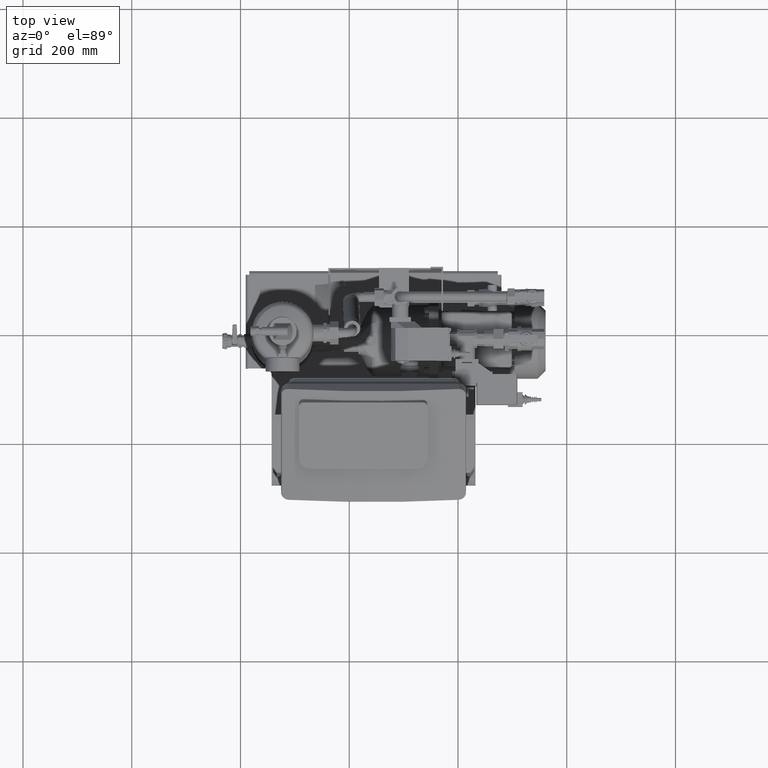
[diagram: clean part render]
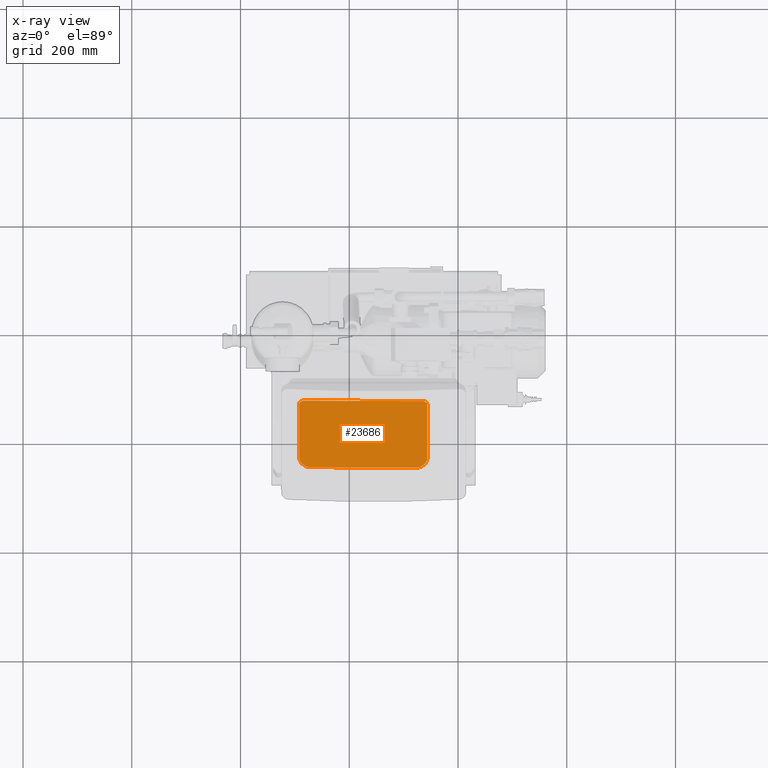
[diagram: x-ray — body ghosted, one internal face saturated and labeled with its STEP entity id]
A machine part, top view, then the same camera in x-ray: the body is ghosted and one INTERNAL B-rep face — a face not visible from any outside direction — is saturated and labeled: STEP entity #23686.
In plain terms, the highlighted planar face has unit normal (0.0066, 0.5, -0.866).
Its self-contained STEP definition (entity closure, byte-faithful):
#23611=CARTESIAN_POINT('',(44.532698356409199,-218.84142560913361,620.9296278255465));
#23612=DIRECTION('',(0.006563574690845,0.49998922975582,-0.866006749174312));
#23613=DIRECTION('',(0.999978459511643,-0.003281787345423,0.005684222421909));
#23614=AXIS2_PLACEMENT_3D('',#23611,#23612,#23613);
#23615=PLANE('',#23614);
#23616=CARTESIAN_POINT('',(122.24335258335437,-253.73747709574346,601.37136198389396));
#23617=VERTEX_POINT('',#23616);
#23618=CARTESIAN_POINT('',(143.74335258335435,-235.18849086220033,612.24357539850166));
#23619=VERTEX_POINT('',#23618);
#23620=CARTESIAN_POINT('',(122.24335258335437,-235.11793091437804,612.12136198389396));
#23621=DIRECTION('',(-0.006563574690845,-0.49998922975582,0.866006749174312));
#23622=DIRECTION('',(0.999978459511643,-0.003281787345423,0.005684222421908));
#23623=AXIS2_PLACEMENT_3D('',#23620,#23621,#23622);
#23624=ELLIPSE('',#23623,21.500463130475747,21.500000000000007);
#23625=EDGE_CURVE('',#23617,#23619,#23624,.T.);
#23626=ORIENTED_EDGE('',*,*,#23625,.T.);
#23627=CARTESIAN_POINT('',(143.74335258335435,-139.92569644591188,667.24357539850155));
#23628=VERTEX_POINT('',#23627);
#23629=CARTESIAN_POINT('',(143.74335258335435,-235.1884908622003,612.24357539850166));
#23630=DIRECTION('',(2.583792E-016,0.866025403784439,0.499999999999999));
#23631=VECTOR('',#23630,110.00000000000006);
#23632=LINE('',#23629,#23631);
#23633=EDGE_CURVE('',#23619,#23628,#23632,.T.);
#23634=ORIENTED_EDGE('',*,*,#23633,.T.);
#23635=CARTESIAN_POINT('',(135.24335258335435,-132.53658472041914,671.44525846714498));
#23636=VERTEX_POINT('',#23635);
#23637=CARTESIAN_POINT('',(135.24335258335435,-139.89780065258688,667.19525846714498));
#23638=DIRECTION('',(-0.006563574690845,-0.49998922975582,0.866006749174312));
#23639=DIRECTION('',(0.999978459511643,-0.003281787345426,0.005684222421907));
#23640=AXIS2_PLACEMENT_3D('',#23637,#23638,#23639);
#23641=ELLIPSE('',#23640,8.500183098095031,8.49999999999997);
#23642=EDGE_CURVE('',#23628,#23636,#23641,.T.);
#23643=ORIENTED_EDGE('',*,*,#23642,.T.);
#23644=CARTESIAN_POINT('',(-83.756647416645635,-131.81785781004285,670.20038694160644));
#23645=VERTEX_POINT('',#23644);
#23646=CARTESIAN_POINT('',(135.24335258335435,-132.53658472041911,671.44525846714498));
#23647=DIRECTION('',(-0.999978459511643,0.003281787345423,-0.005684222421908));
#23648=VECTOR('',#23647,219.00471746856687);
#23649=LINE('',#23646,#23648);
#23650=EDGE_CURVE('',#23636,#23645,#23649,.T.);
#23651=ORIENTED_EDGE('',*,*,#23650,.T.);
#23652=CARTESIAN_POINT('',(-92.256647416645578,-139.15117794888548,665.90207001024999));
#23653=VERTEX_POINT('',#23652);
#23654=CARTESIAN_POINT('',(-83.756647416645635,-139.17907374221059,665.95038694160644));
#23655=DIRECTION('',(-0.006563574690845,-0.49998922975582,0.866006749174312));
#23656=DIRECTION('',(-0.999978459511643,0.003281787345423,-0.005684222421908));
#23657=AXIS2_PLACEMENT_3D('',#23654,#23655,#23656);
#23658=ELLIPSE('',#23657,8.500183098095077,8.500000000000016);
#23659=EDGE_CURVE('',#23645,#23653,#23658,.T.);
#23660=ORIENTED_EDGE('',*,*,#23659,.T.);
#23661=CARTESIAN_POINT('',(-92.256647416645748,-234.41397236517381,610.9020700102501));
#23662=VERTEX_POINT('',#23661);
#23663=CARTESIAN_POINT('',(-92.256647416645606,-139.15117794888545,665.90207001024999));
#23664=DIRECTION('',(-5.167584E-016,-0.866025403784439,-0.499999999999999));
#23665=VECTOR('',#23664,110.00000000000001);
#23666=LINE('',#23663,#23665);
#23667=EDGE_CURVE('',#23653,#23662,#23666,.T.);
#23668=ORIENTED_EDGE('',*,*,#23667,.T.);
#23669=CARTESIAN_POINT('',(-70.756647416645862,-253.10407849436163,600.2742834248578));
#23670=VERTEX_POINT('',#23669);
#23671=CARTESIAN_POINT('',(-70.756647416645635,-234.48453231299609,611.02428342485769));
#23672=DIRECTION('',(-0.006563574690845,-0.49998922975582,0.866006749174312));
#23673=DIRECTION('',(-0.999978459511643,0.003281787345422,-0.005684222421909));
#23674=AXIS2_PLACEMENT_3D('',#23671,#23672,#23673);
#23675=ELLIPSE('',#23674,21.500463130475762,21.500000000000018);
#23676=EDGE_CURVE('',#23662,#23670,#23675,.T.);
#23677=ORIENTED_EDGE('',*,*,#23676,.T.);
#23678=CARTESIAN_POINT('',(-70.756647416645876,-253.10407849436157,600.2742834248578));
#23679=DIRECTION('',(0.999978459511643,-0.003281787345423,0.005684222421909));
#23680=VECTOR('',#23679,193.00415740380572);
#23681=LINE('',#23678,#23680);
#23682=EDGE_CURVE('',#23670,#23617,#23681,.T.);
#23683=ORIENTED_EDGE('',*,*,#23682,.T.);
#23684=EDGE_LOOP('',(#23626,#23634,#23643,#23651,#23660,#23668,#23677,#23683));
#23685=FACE_OUTER_BOUND('',#23684,.T.);
#23686=ADVANCED_FACE('',(#23685),#23615,.F.);